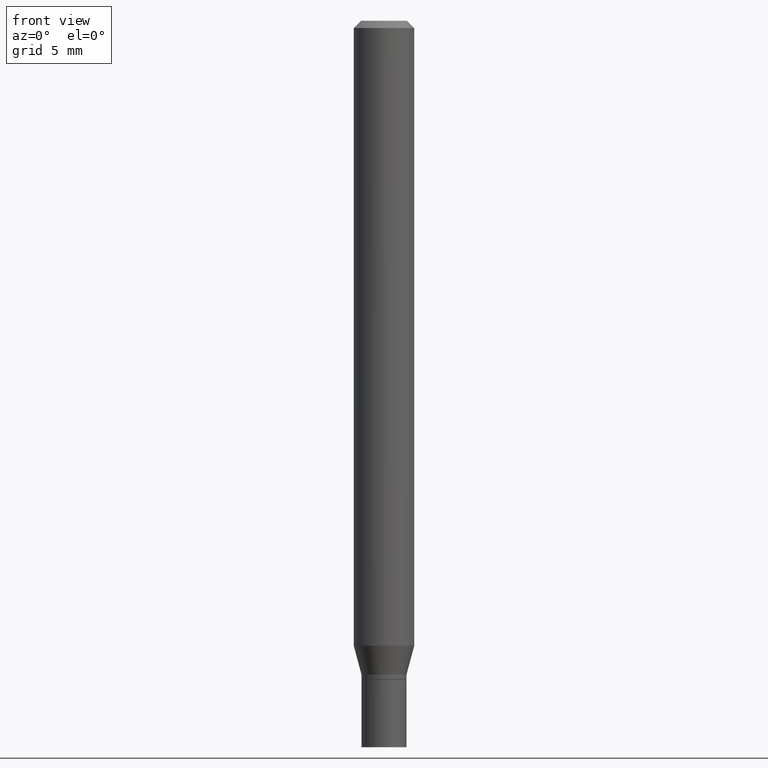
[diagram: clean part render]
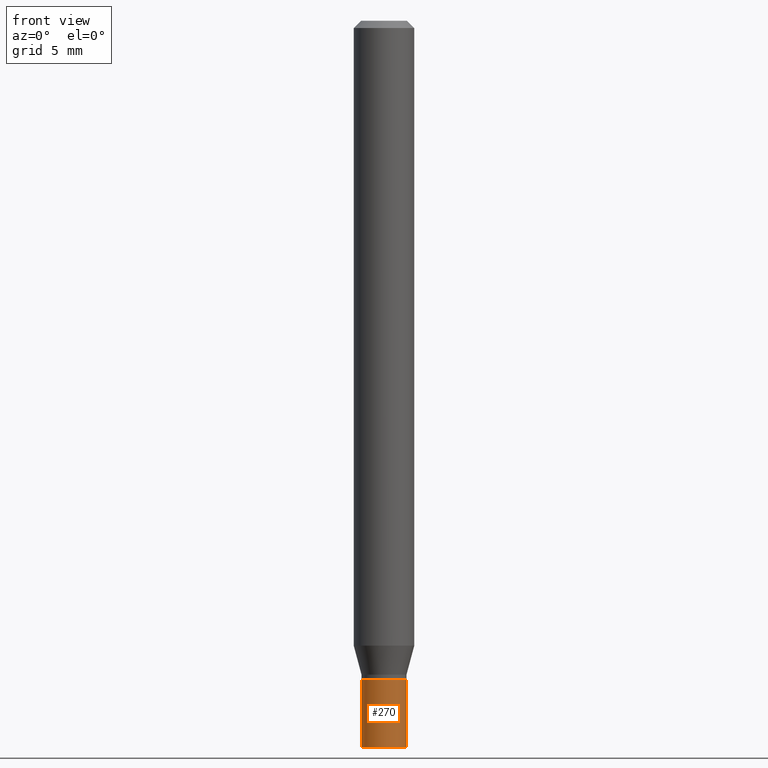
[diagram: same view with one face highlighted and labeled with its STEP entity id]
A machine part, front view. The second image highlights one B-rep face of the part: STEP entity #270.
In plain terms, the highlighted cylindrical surface (edge-blend (fillet) strip) has radius 1.1811 mm, axis along (-0, 0, 1).
Its self-contained STEP definition (entity closure, byte-faithful):
#10 = ORIENTED_EDGE ( 'NONE', *, *, #177, .T. ) ;
#25 = CYLINDRICAL_SURFACE ( 'NONE', #196, 0.04649999999999999967 ) ;
#49 = EDGE_CURVE ( 'NONE', #323, #444, #238, .T. ) ;
#70 = VECTOR ( 'NONE', #223, 39.37007874015748143 ) ;
#82 = DIRECTION ( 'NONE',  ( -2.445468806185136877E-29, 3.491481338843145188E-15, 1.000000000000000000 ) ) ;
#112 = DIRECTION ( 'NONE',  ( -2.445468806185136597E-29, 3.491481338843145583E-15, 1.000000000000000000 ) ) ;
#114 = CARTESIAN_POINT ( 'NONE',  ( -0.04649999999999999967, -4.662415942417251725E-15, -1.360000000000000320 ) ) ;
#130 = CARTESIAN_POINT ( 'NONE',  ( 0.000000000000000000, 0.000000000000000000, 0.000000000000000000 ) ) ;
#133 = DIRECTION ( 'NONE',  ( 1.000000000000000000, -6.982962677686267499E-15, 4.876176775795936353E-29 ) ) ;
#146 = VERTEX_POINT ( 'NONE', #114 ) ;
#153 = AXIS2_PLACEMENT_3D ( 'NONE', #162, #424, #380 ) ;
#154 = VECTOR ( 'NONE', #82, 39.37007874015748143 ) ;
#162 = CARTESIAN_POINT ( 'NONE',  ( 3.668203209277704895E-29, -5.237222008264718177E-15, -1.500000000000000222 ) ) ;
#177 = EDGE_CURVE ( 'NONE', #444, #325, #436, .T. ) ;
#196 = AXIS2_PLACEMENT_3D ( 'NONE', #130, #265, #133 ) ;
#200 = EDGE_CURVE ( 'NONE', #146, #325, #404, .T. ) ;
#223 = DIRECTION ( 'NONE',  ( -2.445468806185136877E-29, 3.491481338843145188E-15, 1.000000000000000000 ) ) ;
#238 = CIRCLE ( 'NONE', #153, 0.04649999999999999967 ) ;
#242 = CARTESIAN_POINT ( 'NONE',  ( -0.04649999999999999967, -4.662415942417251725E-15, -1.500000000000000222 ) ) ;
#254 = EDGE_CURVE ( 'NONE', #323, #146, #461, .T. ) ;
#265 = DIRECTION ( 'NONE',  ( -2.445468806185136597E-29, 3.491481338843145583E-15, 1.000000000000000000 ) ) ;
#270 = ADVANCED_FACE ( 'NONE', ( #378 ), #25, .T. ) ;
#278 = ORIENTED_EDGE ( 'NONE', *, *, #200, .F. ) ;
#296 = CARTESIAN_POINT ( 'NONE',  ( -0.04649999999999999967, 3.304023721284465841E-16, -2.287304816968531530E-30 ) ) ;
#307 = CARTESIAN_POINT ( 'NONE',  ( 0.04649999999999999967, -3.247077645124114474E-16, 2.267422200745110326E-30 ) ) ;
#320 = ORIENTED_EDGE ( 'NONE', *, *, #254, .F. ) ;
#323 = VERTEX_POINT ( 'NONE', #242 ) ;
#325 = VERTEX_POINT ( 'NONE', #356 ) ;
#356 = CARTESIAN_POINT ( 'NONE',  ( 0.04649999999999999967, -5.073122385339090530E-15, -1.360000000000000320 ) ) ;
#361 = EDGE_LOOP ( 'NONE', ( #320, #410, #10, #278 ) ) ;
#378 = FACE_OUTER_BOUND ( 'NONE', #361, .T. ) ;
#380 = DIRECTION ( 'NONE',  ( 1.000000000000000000, -6.982962677686260400E-15, 0.000000000000000000 ) ) ;
#393 = DIRECTION ( 'NONE',  ( 1.000000000000000000, -6.982962677686260400E-15, 0.000000000000000000 ) ) ;
#394 = AXIS2_PLACEMENT_3D ( 'NONE', #428, #112, #393 ) ;
#404 = CIRCLE ( 'NONE', #394, 0.04649999999999999967 ) ;
#408 = CARTESIAN_POINT ( 'NONE',  ( 0.04649999999999999967, -5.561929772777129673E-15, -1.500000000000000222 ) ) ;
#410 = ORIENTED_EDGE ( 'NONE', *, *, #49, .T. ) ;
#424 = DIRECTION ( 'NONE',  ( -2.445468806185136597E-29, 3.491481338843145583E-15, 1.000000000000000000 ) ) ;
#428 = CARTESIAN_POINT ( 'NONE',  ( 3.325837576411786624E-29, -4.748414620826679034E-15, -1.360000000000000320 ) ) ;
#436 = LINE ( 'NONE', #307, #154 ) ;
#444 = VERTEX_POINT ( 'NONE', #408 ) ;
#461 = LINE ( 'NONE', #296, #70 ) ;